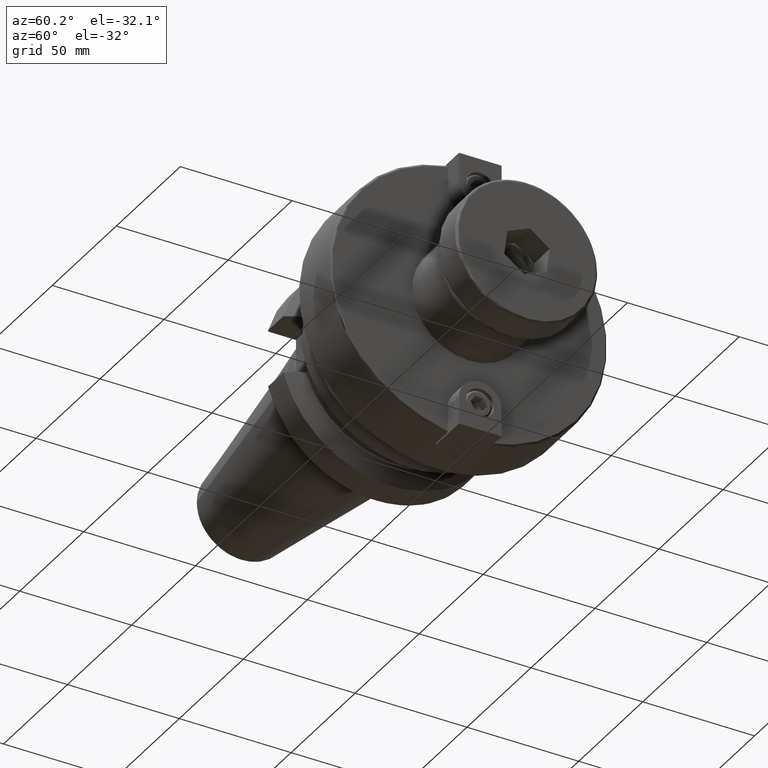
[diagram: clean part render]
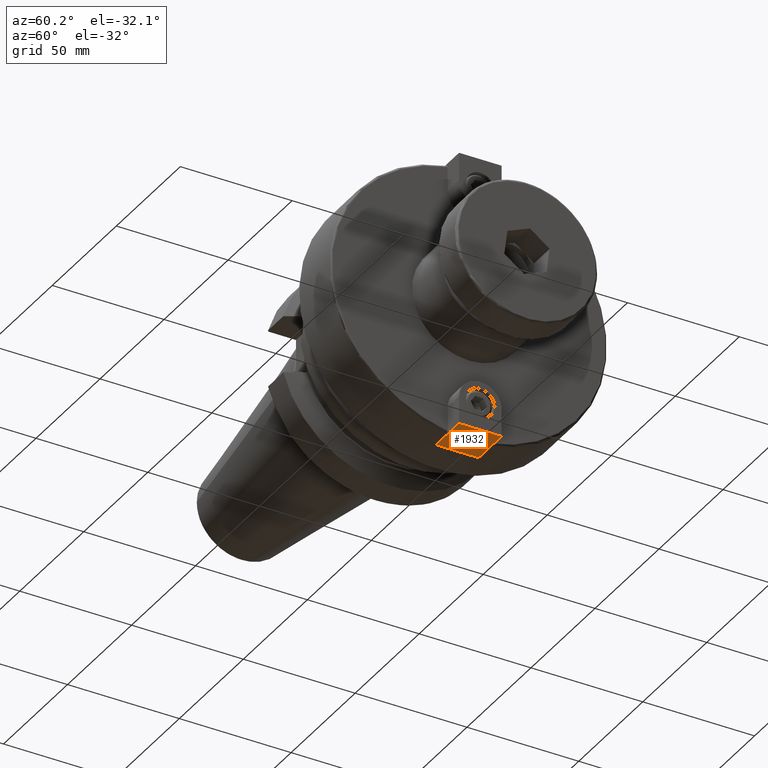
[diagram: same view with one face highlighted and labeled with its STEP entity id]
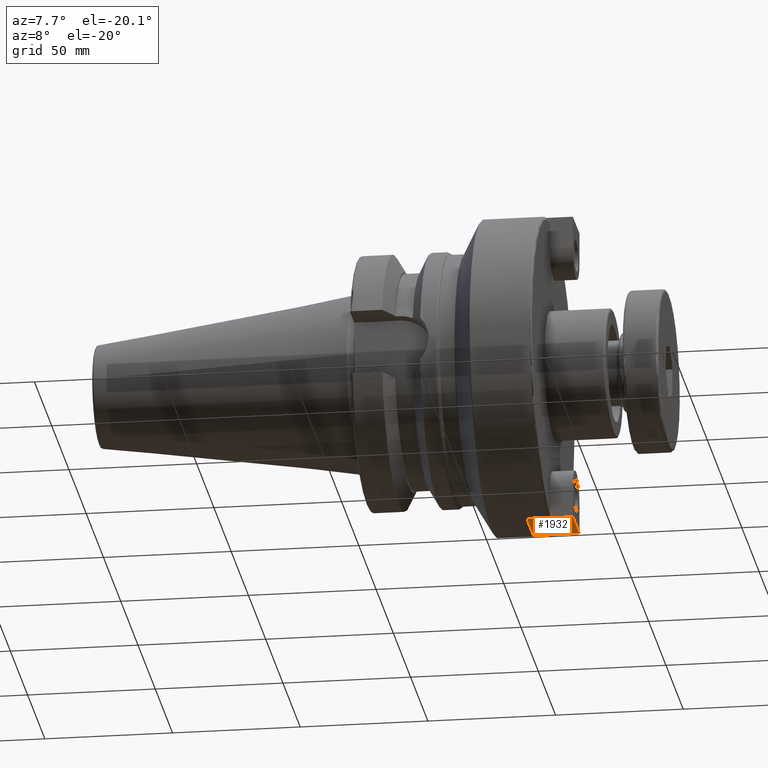
[diagram: same view with one face highlighted and labeled with its STEP entity id]
A machine part, auxiliary view. The second image highlights one B-rep face of the part: STEP entity #1932.
A second angle (auxiliary view) of the same face is appended — the face is thin or edge-on in the first view.
In plain terms, the highlighted planar face has unit normal (0, -0, -1).
Its self-contained STEP definition (entity closure, byte-faithful):
#340=FACE_OUTER_BOUND('',#467,.T.);
#467=EDGE_LOOP('',(#1594,#1595,#1596,#1597));
#593=LINE('',#3465,#718);
#594=LINE('',#3468,#719);
#595=LINE('',#3470,#720);
#596=LINE('',#3471,#721);
#718=VECTOR('',#2711,10.);
#719=VECTOR('',#2714,10.);
#720=VECTOR('',#2715,10.);
#721=VECTOR('',#2716,10.);
#900=VERTEX_POINT('',#3458);
#903=VERTEX_POINT('',#3463);
#904=VERTEX_POINT('',#3467);
#905=VERTEX_POINT('',#3469);
#1145=EDGE_CURVE('',#900,#903,#593,.T.);
#1146=EDGE_CURVE('',#904,#900,#594,.T.);
#1147=EDGE_CURVE('',#905,#903,#595,.T.);
#1148=EDGE_CURVE('',#904,#905,#596,.T.);
#1594=ORIENTED_EDGE('',*,*,#1146,.T.);
#1595=ORIENTED_EDGE('',*,*,#1145,.T.);
#1596=ORIENTED_EDGE('',*,*,#1147,.F.);
#1597=ORIENTED_EDGE('',*,*,#1148,.F.);
#1832=PLANE('',#2233);
#1932=ADVANCED_FACE('',(#340),#1832,.T.);
#2233=AXIS2_PLACEMENT_3D('',#3466,#2712,#2713);
#2711=DIRECTION('',(0.,1.,0.));
#2712=DIRECTION('center_axis',(0.,0.,-1.));
#2713=DIRECTION('ref_axis',(-1.,0.,0.));
#2714=DIRECTION('',(-1.,0.,0.));
#2715=DIRECTION('',(-1.,0.,0.));
#2716=DIRECTION('',(0.,1.,0.));
#3458=CARTESIAN_POINT('',(-9.525,0.,-12.475));
#3463=CARTESIAN_POINT('',(-9.525,18.,-12.475));
#3465=CARTESIAN_POINT('',(-9.525,0.,-12.475));
#3466=CARTESIAN_POINT('Origin',(9.525,0.,-12.475));
#3467=CARTESIAN_POINT('',(9.525,0.,-12.475));
#3468=CARTESIAN_POINT('',(9.525,0.,-12.475));
#3469=CARTESIAN_POINT('',(9.525,18.,-12.475));
#3470=CARTESIAN_POINT('',(9.525,18.,-12.475));
#3471=CARTESIAN_POINT('',(9.525,0.,-12.475));